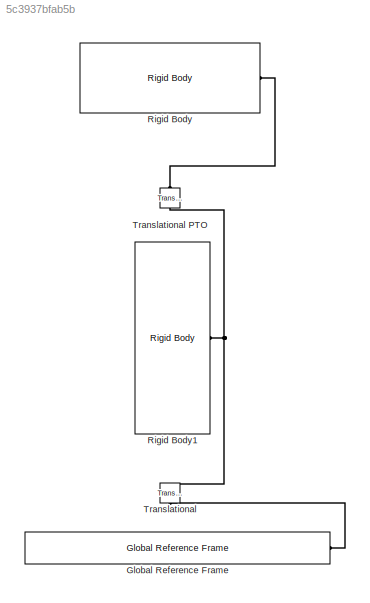
MODEL slx_5c3937bfab5b
KIND model
CONFIG AbsTol = auto
CONFIG FixedStep = 0.1
CONFIG MaxStep = auto
CONFIG MinStep = auto
CONFIG RelTol = 1e-3
CONFIG SampleTimeConstraint = Unconstrained
CONFIG Solver = ode4
CONFIG SolverMode = Auto
CONFIG SolverName = ode4
CONFIG StartTime = 0
CONFIG StopTime = 400
BLOCK [Reference] Global Reference Frame  REF=WECSim_Lib/Frames/Global Reference Frame
  Ports = [0, 0, 0, 0, 0, 0, 1]
  SourceBlock = WECSim_Lib/Frames/Global Reference Frame
  SourceType = Frames
BLOCK [Reference] Rigid Body  REF=WECSim_Lib/Body Elements/Rigid Body
  AttributesFormatString = %<body>
  Ports = [0, 0, 0, 0, 0, 0, 1]
  SourceBlock = WECSim_Lib/Body Elements/Rigid Body
BLOCK [Reference] Rigid Body1  REF=WECSim_Lib/Body Elements/Rigid Body
  AttributesFormatString = %<body>
  Ports = [0, 0, 0, 0, 0, 0, 1]
  SourceBlock = WECSim_Lib/Body Elements/Rigid Body
BLOCK [Reference] Translational  REF=WECSim_Lib/Constraints/Translational
  AttributesFormatString = %<constraint>
  Ports = [0, 0, 0, 0, 0, 1, 1]
  SourceBlock = WECSim_Lib/Constraints/Translational
  SourceType = Constraints
BLOCK [Reference] Translational PTO  REF=WECSim_Lib/PTOs/Translational PTO
  AttributesFormatString = %<pto>
  Ports = [0, 0, 0, 0, 0, 1, 1]
  SourceBlock = WECSim_Lib/PTOs/Translational PTO
  SourceType = PTO
PLINE Global Reference Frame:RConn1 -- Translational:LConn1
PNET net1: Rigid Body1:RConn1 -- Translational PTO:RConn1 -- Translational:RConn1
PLINE Rigid Body:RConn1 -- Translational PTO:LConn1
note: PNET lines group multi-terminal physical nets as a canonical sorted terminal list (undirected conserving connections); 2-terminal nets keep the pairwise PLINE form
